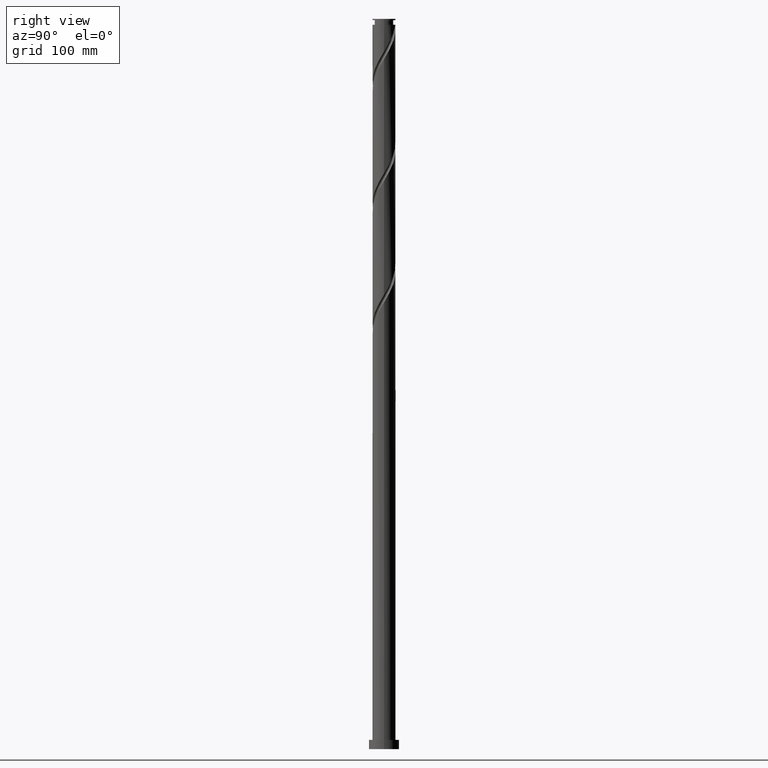
[diagram: clean part render]
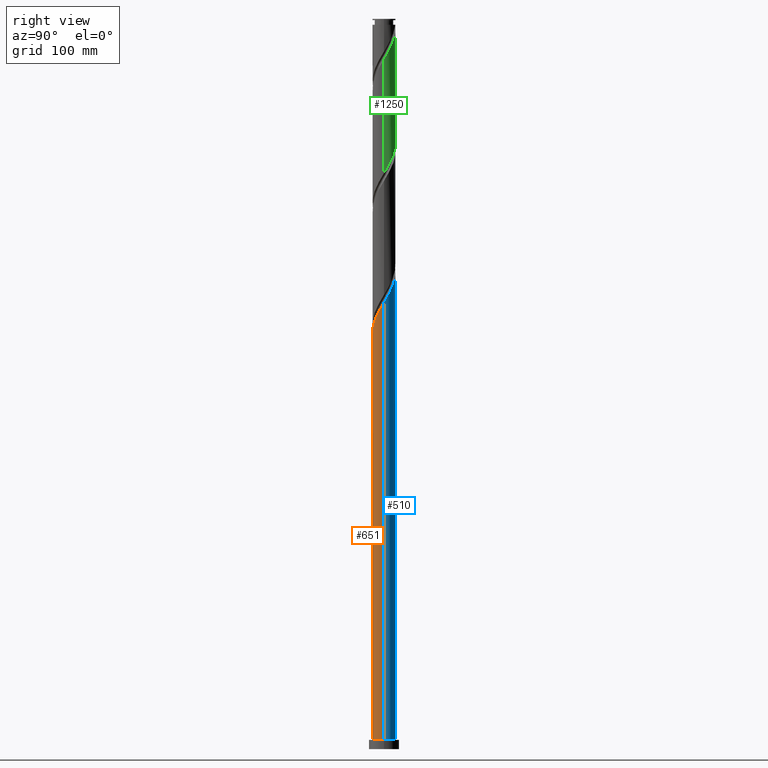
[diagram: same view with three faces highlighted in distinct colors, each labeled with its STEP entity id]
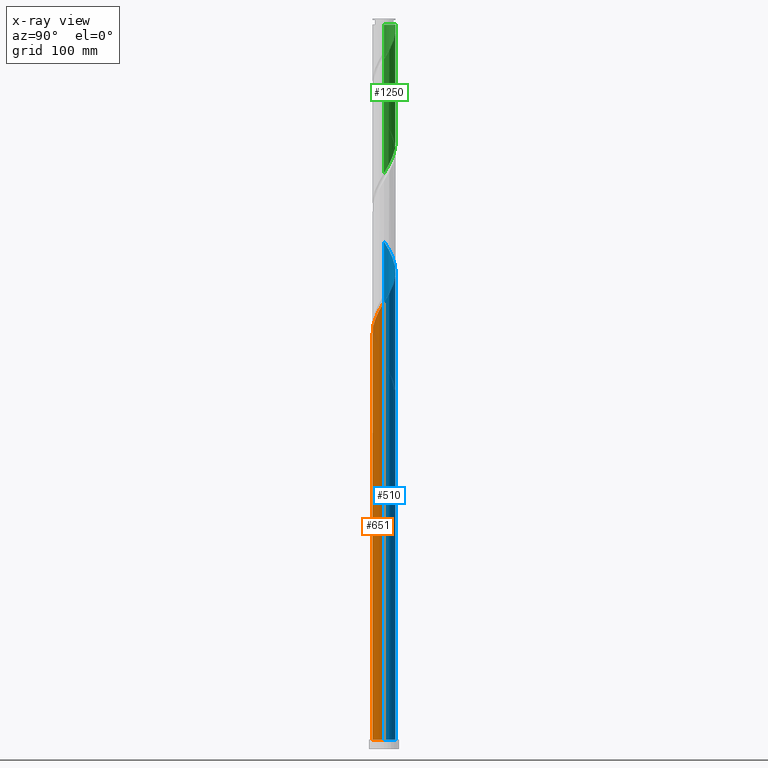
[diagram: x-ray of the same camera — body ghosted, the three highlighted faces saturated]
A machine part, right view with three faces highlighted in distinct colors.
The next image is the same camera in x-ray (body ghosted, the three faces saturated) — at least one of them is partly hidden behind the body in this view.
Their STEP definitions:

[orange] entity #651 — the highlighted cylindrical surface (edge-blend (fillet) strip) has radius 10 mm, axis along (-0, -0, -1).
#22 = ORIENTED_EDGE ( 'NONE', *, *, #1906, .F. ) ;
#50 = CARTESIAN_POINT ( 'NONE',  ( -9.307182251975389065, -3.772931706511726269, 339.2552040029368072 ) ) ;
#64 = EDGE_CURVE ( 'NONE', #976, #1313, #1908, .T. ) ;
#75 = CARTESIAN_POINT ( 'NONE',  ( -5.131608130647619781, -8.582924792486039678, 350.0640275323485753 ) ) ;
#86 = CARTESIAN_POINT ( 'NONE',  ( 0.000000000000000000, 0.000000000000000000, 630.0000000000000000 ) ) ;
#172 = AXIS2_PLACEMENT_3D ( 'NONE', #86, #2081, #402 ) ;
#254 = CARTESIAN_POINT ( 'NONE',  ( -0.7711781494491813937, -10.01318827323741267, 357.7846157676426628 ) ) ;
#293 = CARTESIAN_POINT ( 'NONE',  ( 9.970473777339156740, -0.7678884394185103712, 384.0346157676427765 ) ) ;
#371 = LINE ( 'NONE', #1242, #1459 ) ;
#402 = DIRECTION ( 'NONE',  ( -1.000000000000000000, 0.000000000000000000, 0.000000000000000000 ) ) ;
#429 = AXIS2_PLACEMENT_3D ( 'NONE', #1837, #1152, #2138 ) ;
#432 = CARTESIAN_POINT ( 'NONE',  ( 0.1553464957960880299, -9.998793300506024551, 359.3287334147015031 ) ) ;
#462 = CARTESIAN_POINT ( 'NONE',  ( 8.072826484824918936, -5.901649985038897483, 374.7699098852897350 ) ) ;
#569 = CARTESIAN_POINT ( 'NONE',  ( -8.881308828848125003, -4.595906165994323445, 340.7993216499955338 ) ) ;
#601 = CARTESIAN_POINT ( 'NONE',  ( -6.621341042621000206, -7.493853667993722212, 346.9757922382309516 ) ) ;
#614 = CARTESIAN_POINT ( 'NONE',  ( 9.019796612071711905, -4.317785205039720964, 377.8581451794073587 ) ) ;
#627 = CARTESIAN_POINT ( 'NONE',  ( 9.659608383748059524, -2.586883428495470927, 380.9463804735251529 ) ) ;
#651 = ADVANCED_FACE ( 'NONE', ( #1082 ), #2108, .T. ) ;
#659 = CARTESIAN_POINT ( 'NONE',  ( 6.850945933925582487, -7.284541153046554030, 371.6816745911721114 ) ) ;
#682 = CARTESIAN_POINT ( 'NONE',  ( -10.00000000000001421, -5.826109939293364761E-15, 332.8187599341250689 ) ) ;
#686 = DIRECTION ( 'NONE',  ( -0.000000000000000000, -0.000000000000000000, -1.000000000000000000 ) ) ;
#730 = EDGE_CURVE ( 'NONE', #976, #2171, #1400, .T. ) ;
#739 = CARTESIAN_POINT ( 'NONE',  ( -9.941806644708199414, -1.077256069482183332, 334.6228510617604002 ) ) ;
#747 = CARTESIAN_POINT ( 'NONE',  ( 10.00000000000001599, 6.752312032206668672E-15, 385.3187599341251257 ) ) ;
#819 = EDGE_LOOP ( 'NONE', ( #22, #2030, #1695, #1676 ) ) ;
#976 = VERTEX_POINT ( 'NONE', #682 ) ;
#1022 = CARTESIAN_POINT ( 'NONE',  ( -10.00000000000000178, 0.000000000000000000, 630.0000000000000000 ) ) ;
#1070 = CARTESIAN_POINT ( 'NONE',  ( -2.597965892986468184, -9.700991101550712870, 354.6963804735249255 ) ) ;
#1080 = VECTOR ( 'NONE', #1395, 1000.000000000000000 ) ;
#1082 = FACE_OUTER_BOUND ( 'NONE', #819, .T. ) ;
#1116 = CARTESIAN_POINT ( 'NONE',  ( 1.081871141041357509, -9.984398327774636428, 360.8728510617602296 ) ) ;
#1127 = CARTESIAN_POINT ( 'NONE',  ( 1.989974874213248146, -9.800000000000014921, 362.4169687088192404 ) ) ;
#1147 = CARTESIAN_POINT ( 'NONE',  ( 9.899318434635530295, -1.691788894387298070, 382.4904981205837657 ) ) ;
#1152 = DIRECTION ( 'NONE',  ( 0.000000000000000000, 0.000000000000000000, 1.000000000000000000 ) ) ;
#1160 = CARTESIAN_POINT ( 'NONE',  ( 3.756837045000868791, -9.267479453298477665, 365.5052040029368072 ) ) ;
#1168 = CARTESIAN_POINT ( 'NONE',  ( 10.00000000000001599, 6.752312032206668672E-15, 385.3187599341251257 ) ) ;
#1242 = CARTESIAN_POINT ( 'NONE',  ( 10.00000000000000178, 1.224646799147353454E-15, 630.0000000000000000 ) ) ;
#1252 = CARTESIAN_POINT ( 'NONE',  ( -8.455435405720860942, -5.418880625476918844, 342.3434392970544309 ) ) ;
#1260 = CARTESIAN_POINT ( 'NONE',  ( -7.885592126811187264, -6.149588344724690181, 343.8875569441133280 ) ) ;
#1282 = CARTESIAN_POINT ( 'NONE',  ( -4.336283023954743854, -9.058438312957092009, 351.6081451794071882 ) ) ;
#1313 = VERTEX_POINT ( 'NONE', #1661 ) ;
#1324 = CARTESIAN_POINT ( 'NONE',  ( 5.395764636050384588, -8.419366008931334022, 368.5934392970544877 ) ) ;
#1334 = CARTESIAN_POINT ( 'NONE',  ( 9.419898332860585199, -3.481977962603651555, 379.4022628264661421 ) ) ;
#1395 = DIRECTION ( 'NONE',  ( -0.000000000000000000, -0.000000000000000000, -1.000000000000000000 ) ) ;
#1397 = CIRCLE ( 'NONE', #429, 10.00000000000000178 ) ;
#1400 =( BOUNDED_CURVE ( )  B_SPLINE_CURVE ( 2, ( #1420, #1778, #739, #1602, #2091, #50, #569, #1252, #1260, #1955, #601, #1939, #75, #1282, #1412, #1070, #1437, #254, #432, #1116, #1127, #1491, #1160, #2170, #1324, #2126, #659, #2135, #462, #1823, #614, #1334, #627, #1147, #293, #1645, #1168 ),
 .UNSPECIFIED., .F., .T. ) 
 B_SPLINE_CURVE_WITH_KNOTS ( ( 3, 2, 2, 2, 2, 2, 2, 2, 2, 2, 2, 2, 2, 2, 2, 2, 2, 2, 3 ),
 ( 0.05452935731629056371, 0.05882352941176471894, 0.06617647058823528106, 0.07352941176470584317, 0.08088235294117651630, 0.08823529411764707842, 0.09558823529411764053, 0.1029411764705882026, 0.1102941176470588758, 0.1176470588235294379, 0.1250000000000000000, 0.1323529411764705621, 0.1397058823529411242, 0.1470588235294117974, 0.1544117647058823595, 0.1617647058823529216, 0.1691176470588234837, 0.1764705882352941568, 0.1795293573162906053 ),
 .UNSPECIFIED. ) 
 CURVE ( )  GEOMETRIC_REPRESENTATION_ITEM ( )  RATIONAL_B_SPLINE_CURVE ( ( 0.9072066346053020425, 0.9068261157890691315, 0.9090909090909401469, 0.9052128875409715114, 0.9090909090909401469, 0.9052128875409715114, 0.9090909090909401469, 0.9052128875409715114, 0.9090909090909401469, 0.9052128875409715114, 0.9090909090909401469, 0.9052128875409715114, 0.9090909090909401469, 0.9052128875409715114, 0.9090909090909401469, 0.9052128875409715114, 0.9090909090909401469, 0.9052128875409715114, 0.9090909090909401469, 0.9052128875409715114, 0.9090909090909401469, 0.9052128875409715114, 0.9090909090909401469, 0.9052128875409715114, 0.9090909090909401469, 0.9052128875409715114, 0.9090909090909401469, 0.9052128875409715114, 0.9090909090909401469, 0.9052128875409715114, 0.9090909090909401469, 0.9052128875409715114, 0.9090909090909401469, 0.9052128875409715114, 0.9090909090909401469, 0.9074776808428424157, 0.9072066346053018204 ) ) 
 REPRESENTATION_ITEM ( '' )  );
#1412 = CARTESIAN_POINT ( 'NONE',  ( -3.467124458470604687, -9.379714707253905104, 353.1522628264662558 ) ) ;
#1420 = CARTESIAN_POINT ( 'NONE',  ( -10.00000000000001421, -5.826109939293364761E-15, 332.8187599341250689 ) ) ;
#1437 = CARTESIAN_POINT ( 'NONE',  ( -1.684572021217823012, -9.857089687394065436, 356.2404981205838794 ) ) ;
#1459 = VECTOR ( 'NONE', #686, 1000.000000000000000 ) ;
#1491 = CARTESIAN_POINT ( 'NONE',  ( 2.898078607385141670, -9.615601672225386309, 363.9610863558779101 ) ) ;
#1562 = VERTEX_POINT ( 'NONE', #2052 ) ;
#1602 = CARTESIAN_POINT ( 'NONE',  ( -9.841984169373624525, -1.998500123414084673, 336.1669687088190130 ) ) ;
#1645 = CARTESIAN_POINT ( 'NONE',  ( 10.00000000000002132, -0.3845118788768067675, 384.6753541820654618 ) ) ;
#1661 = CARTESIAN_POINT ( 'NONE',  ( -10.00000000000000178, 0.000000000000000000, 8.000000000000000000 ) ) ;
#1676 = ORIENTED_EDGE ( 'NONE', *, *, #1737, .T. ) ;
#1695 = ORIENTED_EDGE ( 'NONE', *, *, #64, .T. ) ;
#1737 = EDGE_CURVE ( 'NONE', #1313, #1562, #1397, .T. ) ;
#1778 = CARTESIAN_POINT ( 'NONE',  ( -10.00000000000001421, -0.5401998367926561517, 333.7226791661378229 ) ) ;
#1823 = CARTESIAN_POINT ( 'NONE',  ( 8.619694891282842164, -5.153592447475790372, 376.3140275323485184 ) ) ;
#1837 = CARTESIAN_POINT ( 'NONE',  ( 0.000000000000000000, 0.000000000000000000, 8.000000000000000000 ) ) ;
#1906 = EDGE_CURVE ( 'NONE', #2171, #1562, #371, .T. ) ;
#1908 = LINE ( 'NONE', #1022, #1080 ) ;
#1939 = CARTESIAN_POINT ( 'NONE',  ( -5.926933237340491267, -8.107411272014985570, 348.5199098852897350 ) ) ;
#1955 = CARTESIAN_POINT ( 'NONE',  ( -7.315748847901506480, -6.880296063972457077, 345.4316745911719977 ) ) ;
#2030 = ORIENTED_EDGE ( 'NONE', *, *, #730, .F. ) ;
#2052 = CARTESIAN_POINT ( 'NONE',  ( 10.00000000000000178, 1.224646799147353454E-15, 8.000000000000000000 ) ) ;
#2081 = DIRECTION ( 'NONE',  ( -0.000000000000000000, -0.000000000000000000, -1.000000000000000000 ) ) ;
#2091 = CARTESIAN_POINT ( 'NONE',  ( -9.574583210674504130, -2.885715914962903472, 337.7110863558780807 ) ) ;
#2108 = CYLINDRICAL_SURFACE ( 'NONE', #172, 10.00000000000000178 ) ;
#2126 = CARTESIAN_POINT ( 'NONE',  ( 6.175933789484166603, -7.919374783491107017, 370.1375569441132143 ) ) ;
#2135 = CARTESIAN_POINT ( 'NONE',  ( 7.525958078366993931, -6.649707522602001930, 373.2257922382308379 ) ) ;
#2138 = DIRECTION ( 'NONE',  ( 1.000000000000000000, 0.000000000000000000, 0.000000000000000000 ) ) ;
#2170 = CARTESIAN_POINT ( 'NONE',  ( 4.615595482616599909, -8.919357234371563692, 367.0493216499954769 ) ) ;
#2171 = VERTEX_POINT ( 'NONE', #747 ) ;

[blue] entity #510 — the highlighted cylindrical surface (edge-blend (fillet) strip) has radius 10 mm, axis along (-0, -0, -1).
#2 = CARTESIAN_POINT ( 'NONE',  ( 10.00000000000001599, 6.752312032206668672E-15, 385.3187599341251257 ) ) ;
#13 = CARTESIAN_POINT ( 'NONE',  ( -3.756837045000871900, 9.267479453298477665, 418.0052040029368641 ) ) ;
#25 = CARTESIAN_POINT ( 'NONE',  ( 4.336283023954746518, 9.058438312957090233, 404.1081451794073587 ) ) ;
#38 = CARTESIAN_POINT ( 'NONE',  ( 9.574583210674507683, 2.885715914962901696, 390.2110863558780238 ) ) ;
#56 = EDGE_LOOP ( 'NONE', ( #1504, #1726, #1161, #1335, #698, #707, #463, #505 ) ) ;
#60 = CARTESIAN_POINT ( 'NONE',  ( -9.574583210674489919, 2.885715914962902584, 334.6228510617603433 ) ) ;
#64 = EDGE_CURVE ( 'NONE', #976, #1313, #1908, .T. ) ;
#96 =( BOUNDED_CURVE ( )  B_SPLINE_CURVE ( 2, ( #2, #1859, #1899, #204, #38, #1359, #1232, #724, #536, #673, #1728, #1910, #2020, #25, #512, #712, #178, #330, #1195, #547, #1714, #340, #13, #700, #1873, #1062, #1371, #1036, #2047, #524, #1385, #1885, #357, #192, #1554, #2060, #1220 ),
 .UNSPECIFIED., .F., .T. ) 
 B_SPLINE_CURVE_WITH_KNOTS ( ( 3, 2, 2, 2, 2, 2, 2, 2, 2, 2, 2, 2, 2, 2, 2, 2, 2, 2, 3 ),
 ( 0.1795293573162906331, 0.1838235294117647189, 0.1911764705882352811, 0.1985294117647058432, 0.2058823529411765163, 0.2132352941176470784, 0.2205882352941176405, 0.2279411764705882026, 0.2352941176470588758, 0.2426470588235294379, 0.2500000000000000000, 0.2573529411764705621, 0.2647058823529411242, 0.2720588235294117974, 0.2794117647058823595, 0.2867647058823529216, 0.2941176470588234837, 0.3014705882352941568, 0.3045293573162903278 ),
 .UNSPECIFIED. ) 
 CURVE ( )  GEOMETRIC_REPRESENTATION_ITEM ( )  RATIONAL_B_SPLINE_CURVE ( ( 0.9072066346053018204, 0.9068261157890690205, 0.9090909090909401469, 0.9052128875409715114, 0.9090909090909401469, 0.9052128875409715114, 0.9090909090909401469, 0.9052128875409715114, 0.9090909090909401469, 0.9052128875409715114, 0.9090909090909401469, 0.9052128875409715114, 0.9090909090909401469, 0.9052128875409715114, 0.9090909090909401469, 0.9052128875409715114, 0.9090909090909401469, 0.9052128875409715114, 0.9090909090909401469, 0.9052128875409715114, 0.9090909090909401469, 0.9052128875409715114, 0.9090909090909401469, 0.9052128875409715114, 0.9090909090909401469, 0.9052128875409715114, 0.9090909090909401469, 0.9052128875409715114, 0.9090909090909401469, 0.9052128875409715114, 0.9090909090909401469, 0.9052128875409715114, 0.9090909090909401469, 0.9052128875409715114, 0.9090909090909401469, 0.9074776808428426378, 0.9072066346053018204 ) ) 
 REPRESENTATION_ITEM ( '' )  );
#102 = CARTESIAN_POINT ( 'NONE',  ( -1.989974874213246814, 9.800000000000014921, 309.9169687088191836 ) ) ;
#178 = CARTESIAN_POINT ( 'NONE',  ( 1.684572021217823679, 9.857089687394065436, 408.7404981205839363 ) ) ;
#192 = CARTESIAN_POINT ( 'NONE',  ( -9.899318434635530295, 1.691788894387298736, 434.9904981205838226 ) ) ;
#204 = CARTESIAN_POINT ( 'NONE',  ( 9.841984169373624525, 1.998500123414083118, 388.6669687088191267 ) ) ;
#224 = CARTESIAN_POINT ( 'NONE',  ( -10.00000000000000178, -2.094411829458808635E-14, 339.5151774835132983 ) ) ;
#233 = CARTESIAN_POINT ( 'NONE',  ( -8.455435405720850284, 5.418880625476918844, 329.9904981205837657 ) ) ;
#266 = CARTESIAN_POINT ( 'NONE',  ( -1.684572021217819016, 9.857089687394051225, 316.0934392970544309 ) ) ;
#279 = VECTOR ( 'NONE', #2088, 1000.000000000000000 ) ;
#280 = CARTESIAN_POINT ( 'NONE',  ( -10.00000000000001599, 0.3845118788768149276, 332.1753541820653481 ) ) ;
#330 = CARTESIAN_POINT ( 'NONE',  ( 0.7711781494491821709, 10.01318827323741090, 410.2846157676426060 ) ) ;
#335 = CARTESIAN_POINT ( 'NONE',  ( -3.756837045000871900, 9.267479453298477665, 313.0052040029368072 ) ) ;
#340 = CARTESIAN_POINT ( 'NONE',  ( -2.898078607385141225, 9.615601672225386309, 416.4610863558778533 ) ) ;
#357 = CARTESIAN_POINT ( 'NONE',  ( -9.659608383748059524, 2.586883428495473591, 433.4463804735249823 ) ) ;
#364 = CARTESIAN_POINT ( 'NONE',  ( -8.072826484824918936, 5.901649985038897483, 322.2699098852897350 ) ) ;
#370 = FACE_OUTER_BOUND ( 'NONE', #56, .T. ) ;
#371 = LINE ( 'NONE', #1242, #1459 ) ;
#392 = CARTESIAN_POINT ( 'NONE',  ( -6.621341042620988659, 7.493853667993711554, 325.3581451794074155 ) ) ;
#420 = AXIS2_PLACEMENT_3D ( 'NONE', #1915, #1776, #1766 ) ;
#434 = CARTESIAN_POINT ( 'NONE',  ( -9.419898332860585199, 3.481977962603648447, 326.9022628264661989 ) ) ;
#463 = ORIENTED_EDGE ( 'NONE', *, *, #664, .F. ) ;
#479 = EDGE_CURVE ( 'NONE', #2171, #2069, #96, .T. ) ;
#505 = ORIENTED_EDGE ( 'NONE', *, *, #1045, .F. ) ;
#510 = ADVANCED_FACE ( 'NONE', ( #370 ), #1050, .T. ) ;
#512 = CARTESIAN_POINT ( 'NONE',  ( 3.467124458470610904, 9.379714707253905104, 405.6522628264661421 ) ) ;
#524 = CARTESIAN_POINT ( 'NONE',  ( -8.619694891282842164, 5.153592447475790372, 428.8140275323485184 ) ) ;
#536 = CARTESIAN_POINT ( 'NONE',  ( 7.885592126811185487, 6.149588344724691957, 396.3875569441132143 ) ) ;
#547 = CARTESIAN_POINT ( 'NONE',  ( -1.081871141041356399, 9.984398327774638204, 413.3728510617603433 ) ) ;
#558 = CARTESIAN_POINT ( 'NONE',  ( 1.081871141041356177, 9.984398327774622217, 311.4610863558780807 ) ) ;
#572 = CARTESIAN_POINT ( 'NONE',  ( -9.970473777339156740, 0.7678884394185070406, 331.5346157676427197 ) ) ;
#637 = CARTESIAN_POINT ( 'NONE',  ( 0.000000000000000000, 0.000000000000000000, 309.9169687088191836 ) ) ;
#664 = EDGE_CURVE ( 'NONE', #1393, #1710, #1616, .T. ) ;
#673 = CARTESIAN_POINT ( 'NONE',  ( 7.315748847901506480, 6.880296063972454412, 397.9316745911720545 ) ) ;
#676 = AXIS2_PLACEMENT_3D ( 'NONE', #637, #1311, #862 ) ;
#682 = CARTESIAN_POINT ( 'NONE',  ( -10.00000000000001421, -5.826109939293364761E-15, 332.8187599341250689 ) ) ;
#686 = DIRECTION ( 'NONE',  ( -0.000000000000000000, -0.000000000000000000, -1.000000000000000000 ) ) ;
#692 = CARTESIAN_POINT ( 'NONE',  ( -7.525958078366996595, 6.649707522602001930, 320.7257922382308948 ) ) ;
#698 = ORIENTED_EDGE ( 'NONE', *, *, #1581, .F. ) ;
#700 = CARTESIAN_POINT ( 'NONE',  ( -4.615595482616599909, 8.919357234371563692, 419.5493216499955906 ) ) ;
#707 = ORIENTED_EDGE ( 'NONE', *, *, #857, .T. ) ;
#712 = CARTESIAN_POINT ( 'NONE',  ( 2.597965892986464631, 9.700991101550712870, 407.1963804735249823 ) ) ;
#717 = CARTESIAN_POINT ( 'NONE',  ( -9.659608383748059524, 2.586883428495473591, 328.4463804735250392 ) ) ;
#724 = CARTESIAN_POINT ( 'NONE',  ( 8.455435405720862718, 5.418880625476918844, 394.8434392970543172 ) ) ;
#747 = CARTESIAN_POINT ( 'NONE',  ( 10.00000000000001599, 6.752312032206668672E-15, 385.3187599341251257 ) ) ;
#761 = CARTESIAN_POINT ( 'NONE',  ( -10.00000000000000178, 0.000000000000000000, 630.0000000000000000 ) ) ;
#773 = CARTESIAN_POINT ( 'NONE',  ( -7.885592126811174829, 6.149588344724682187, 328.4463804735250960 ) ) ;
#788 = CARTESIAN_POINT ( 'NONE',  ( -10.00000000000001421, -5.826109939293364761E-15, 332.8187599341250689 ) ) ;
#857 = EDGE_CURVE ( 'NONE', #1646, #1710, #1697, .T. ) ;
#862 = DIRECTION ( 'NONE',  ( -1.000000000000000000, 0.000000000000000000, 0.000000000000000000 ) ) ;
#891 = CARTESIAN_POINT ( 'NONE',  ( 0.000000000000000000, 0.000000000000000000, 630.0000000000000000 ) ) ;
#911 = CARTESIAN_POINT ( 'NONE',  ( -9.841984169373612090, 1.998500123414084007, 336.1669687088192404 ) ) ;
#919 = CARTESIAN_POINT ( 'NONE',  ( -4.336283023954739413, 9.058438312957086680, 320.7257922382310085 ) ) ;
#929 = CARTESIAN_POINT ( 'NONE',  ( -7.315748847901494045, 6.880296063972447307, 326.9022628264663695 ) ) ;
#947 = CARTESIAN_POINT ( 'NONE',  ( -5.926933237340482385, 8.107411272014974912, 323.8140275323486321 ) ) ;
#976 = VERTEX_POINT ( 'NONE', #682 ) ;
#997 = CARTESIAN_POINT ( 'NONE',  ( -10.00000000000000178, -2.094411829458808635E-14, 339.5151774835132983 ) ) ;
#1018 = CARTESIAN_POINT ( 'NONE',  ( -5.395764636050383700, 8.419366008931335799, 316.0934392970546014 ) ) ;
#1022 = CARTESIAN_POINT ( 'NONE',  ( -10.00000000000000178, 0.000000000000000000, 630.0000000000000000 ) ) ;
#1026 = AXIS2_PLACEMENT_3D ( 'NONE', #891, #1566, #1399 ) ;
#1036 = CARTESIAN_POINT ( 'NONE',  ( -7.525958078366996595, 6.649707522602001930, 425.7257922382307811 ) ) ;
#1045 = EDGE_CURVE ( 'NONE', #2069, #1393, #1882, .T. ) ;
#1050 = CYLINDRICAL_SURFACE ( 'NONE', #1026, 10.00000000000000178 ) ;
#1062 = CARTESIAN_POINT ( 'NONE',  ( -6.175933789484167491, 7.919374783491107017, 422.6375569441132143 ) ) ;
#1080 = VECTOR ( 'NONE', #1395, 1000.000000000000000 ) ;
#1102 = CARTESIAN_POINT ( 'NONE',  ( -2.597965892986461078, 9.700991101550700435, 317.6375569441132143 ) ) ;
#1120 = CARTESIAN_POINT ( 'NONE',  ( -9.019796612071713682, 4.317785205039719187, 325.3581451794074724 ) ) ;
#1130 = CARTESIAN_POINT ( 'NONE',  ( 1.989974874213250144, 9.799999999999998934, 309.9169687088191836 ) ) ;
#1136 = CIRCLE ( 'NONE', #420, 10.00000000000000178 ) ;
#1144 = EDGE_CURVE ( 'NONE', #1562, #1313, #1136, .T. ) ;
#1161 = ORIENTED_EDGE ( 'NONE', *, *, #1144, .T. ) ;
#1195 = CARTESIAN_POINT ( 'NONE',  ( -0.1553464957960909998, 9.998793300506024551, 411.8287334147015599 ) ) ;
#1213 = CARTESIAN_POINT ( 'NONE',  ( -4.615595482616599909, 8.919357234371563692, 314.5493216499957043 ) ) ;
#1220 = CARTESIAN_POINT ( 'NONE',  ( -10.00000000000001599, 2.201970782184210638E-14, 437.8187599341251257 ) ) ;
#1232 = CARTESIAN_POINT ( 'NONE',  ( 8.881308828848125003, 4.595906165994322556, 393.2993216499956475 ) ) ;
#1242 = CARTESIAN_POINT ( 'NONE',  ( 10.00000000000000178, 1.224646799147353454E-15, 630.0000000000000000 ) ) ;
#1268 = CARTESIAN_POINT ( 'NONE',  ( -0.7711781494491763977, 10.01318827323739669, 314.5493216499955906 ) ) ;
#1285 = CARTESIAN_POINT ( 'NONE',  ( -9.899318434635530295, 1.691788894387298736, 329.9904981205837089 ) ) ;
#1311 = DIRECTION ( 'NONE',  ( 0.000000000000000000, -0.000000000000000000, -1.000000000000000000 ) ) ;
#1313 = VERTEX_POINT ( 'NONE', #1661 ) ;
#1335 = ORIENTED_EDGE ( 'NONE', *, *, #64, .F. ) ;
#1352 = CARTESIAN_POINT ( 'NONE',  ( -1.989974874213246814, 9.800000000000014921, 309.9169687088191836 ) ) ;
#1359 = CARTESIAN_POINT ( 'NONE',  ( 9.307182251975387288, 3.772931706511726713, 391.7552040029368072 ) ) ;
#1365 = CARTESIAN_POINT ( 'NONE',  ( -6.850945933925579823, 7.284541153046557582, 319.1816745911720545 ) ) ;
#1371 = CARTESIAN_POINT ( 'NONE',  ( -6.850945933925579823, 7.284541153046557582, 424.1816745911721114 ) ) ;
#1385 = CARTESIAN_POINT ( 'NONE',  ( -9.019796612071713682, 4.317785205039719187, 430.3581451794074155 ) ) ;
#1393 = VERTEX_POINT ( 'NONE', #997 ) ;
#1395 = DIRECTION ( 'NONE',  ( -0.000000000000000000, -0.000000000000000000, -1.000000000000000000 ) ) ;
#1399 = DIRECTION ( 'NONE',  ( -1.000000000000000000, 0.000000000000000000, 0.000000000000000000 ) ) ;
#1446 = CARTESIAN_POINT ( 'NONE',  ( 0.1553464957960895010, 9.998793300506012116, 313.0052040029368072 ) ) ;
#1459 = VECTOR ( 'NONE', #686, 1000.000000000000000 ) ;
#1504 = ORIENTED_EDGE ( 'NONE', *, *, #479, .F. ) ;
#1554 = CARTESIAN_POINT ( 'NONE',  ( -9.970473777339156740, 0.7678884394185070406, 436.5346157676427197 ) ) ;
#1562 = VERTEX_POINT ( 'NONE', #2052 ) ;
#1566 = DIRECTION ( 'NONE',  ( -0.000000000000000000, -0.000000000000000000, -1.000000000000000000 ) ) ;
#1581 = EDGE_CURVE ( 'NONE', #1646, #976, #2134, .T. ) ;
#1587 = CARTESIAN_POINT ( 'NONE',  ( -8.881308828848109016, 4.595906165994316339, 331.5346157676427197 ) ) ;
#1595 = CARTESIAN_POINT ( 'NONE',  ( 1.989974874213250144, 9.799999999999998934, 309.9169687088191836 ) ) ;
#1610 = CARTESIAN_POINT ( 'NONE',  ( -10.00000000000000355, 0.5401998367926204025, 338.6112582515004874 ) ) ;
#1613 = CARTESIAN_POINT ( 'NONE',  ( -8.619694891282842164, 5.153592447475790372, 323.8140275323485184 ) ) ;
#1616 =( BOUNDED_CURVE ( )  B_SPLINE_CURVE ( 2, ( #224, #1610, #1918, #911, #60, #1761, #1587, #233, #773, #929, #392, #947, #1929, #919, #2100, #1102, #266, #1268, #1446, #558, #1595 ),
 .UNSPECIFIED., .F., .T. ) 
 B_SPLINE_CURVE_WITH_KNOTS ( ( 3, 2, 2, 2, 2, 2, 2, 2, 2, 2, 3 ),
 ( 0.9295293573162902723, 0.9338235294117647189, 0.9411764705882352811, 0.9485294117647058432, 0.9558823529411765163, 0.9632352941176470784, 0.9705882352941176405, 0.9779411764705882026, 0.9852941176470588758, 0.9926470588235294379, 1.000000000000000000 ),
 .UNSPECIFIED. ) 
 CURVE ( )  GEOMETRIC_REPRESENTATION_ITEM ( )  RATIONAL_B_SPLINE_CURVE ( ( 0.9072066346052956032, 0.9068261157890626922, 0.9090909090909340406, 0.9052128875409651831, 0.9090909090909340406, 0.9052128875409651831, 0.9090909090909340406, 0.9052128875409651831, 0.9090909090909340406, 0.9052128875409651831, 0.9090909090909340406, 0.9052128875409651831, 0.9090909090909340406, 0.9052128875409651831, 0.9090909090909340406, 0.9052128875409651831, 0.9090909090909340406, 0.9052128875409651831, 0.9090909090909340406, 0.9052128875409651831, 0.9090909090909340406 ) ) 
 REPRESENTATION_ITEM ( '' )  );
#1646 = VERTEX_POINT ( 'NONE', #102 ) ;
#1661 = CARTESIAN_POINT ( 'NONE',  ( -10.00000000000000178, 0.000000000000000000, 8.000000000000000000 ) ) ;
#1697 = CIRCLE ( 'NONE', #676, 10.00000000000000178 ) ;
#1710 = VERTEX_POINT ( 'NONE', #1130 ) ;
#1714 = CARTESIAN_POINT ( 'NONE',  ( -1.989974874213246370, 9.800000000000014921, 414.9169687088191267 ) ) ;
#1726 = ORIENTED_EDGE ( 'NONE', *, *, #1906, .T. ) ;
#1728 = CARTESIAN_POINT ( 'NONE',  ( 6.621341042621002870, 7.493853667993720435, 399.4757922382309516 ) ) ;
#1761 = CARTESIAN_POINT ( 'NONE',  ( -9.307182251975373077, 3.772931706511721828, 333.0787334147013894 ) ) ;
#1766 = DIRECTION ( 'NONE',  ( 1.000000000000000000, 0.000000000000000000, 0.000000000000000000 ) ) ;
#1776 = DIRECTION ( 'NONE',  ( 0.000000000000000000, 0.000000000000000000, 1.000000000000000000 ) ) ;
#1859 = CARTESIAN_POINT ( 'NONE',  ( 10.00000000000001599, 0.5401998367926676980, 386.2226791661378797 ) ) ;
#1864 = CARTESIAN_POINT ( 'NONE',  ( -2.898078607385141225, 9.615601672225386309, 311.4610863558779101 ) ) ;
#1873 = CARTESIAN_POINT ( 'NONE',  ( -5.395764636050383700, 8.419366008931335799, 421.0934392970544877 ) ) ;
#1882 = LINE ( 'NONE', #761, #279 ) ;
#1885 = CARTESIAN_POINT ( 'NONE',  ( -9.419898332860585199, 3.481977962603648447, 431.9022628264661421 ) ) ;
#1891 = CARTESIAN_POINT ( 'NONE',  ( -6.175933789484167491, 7.919374783491107017, 317.6375569441132711 ) ) ;
#1899 = CARTESIAN_POINT ( 'NONE',  ( 9.941806644708201190, 1.077256069482184664, 387.1228510617602296 ) ) ;
#1906 = EDGE_CURVE ( 'NONE', #2171, #1562, #371, .T. ) ;
#1908 = LINE ( 'NONE', #1022, #1080 ) ;
#1910 = CARTESIAN_POINT ( 'NONE',  ( 5.926933237340488603, 8.107411272014987347, 401.0199098852896213 ) ) ;
#1915 = CARTESIAN_POINT ( 'NONE',  ( 0.000000000000000000, 0.000000000000000000, 8.000000000000000000 ) ) ;
#1918 = CARTESIAN_POINT ( 'NONE',  ( -9.941806644708188756, 1.077256069482184886, 337.7110863558780807 ) ) ;
#1929 = CARTESIAN_POINT ( 'NONE',  ( -5.131608130647609123, 8.582924792486027243, 322.2699098852897350 ) ) ;
#1947 = CARTESIAN_POINT ( 'NONE',  ( -10.00000000000001599, 2.201970782184210323E-14, 437.8187599341251257 ) ) ;
#2020 = CARTESIAN_POINT ( 'NONE',  ( 5.131608130647618005, 8.582924792486041454, 402.5640275323485753 ) ) ;
#2047 = CARTESIAN_POINT ( 'NONE',  ( -8.072826484824918936, 5.901649985038897483, 427.2699098852897919 ) ) ;
#2052 = CARTESIAN_POINT ( 'NONE',  ( 10.00000000000000178, 1.224646799147353454E-15, 8.000000000000000000 ) ) ;
#2060 = CARTESIAN_POINT ( 'NONE',  ( -10.00000000000001421, 0.3845118788768445706, 437.1753541820654618 ) ) ;
#2069 = VERTEX_POINT ( 'NONE', #1947 ) ;
#2088 = DIRECTION ( 'NONE',  ( -0.000000000000000000, -0.000000000000000000, -1.000000000000000000 ) ) ;
#2100 = CARTESIAN_POINT ( 'NONE',  ( -3.467124458470598913, 9.379714707253892669, 319.1816745911721114 ) ) ;
#2134 =( BOUNDED_CURVE ( )  B_SPLINE_CURVE ( 2, ( #1352, #1864, #335, #1213, #1018, #1891, #1365, #692, #364, #1613, #1120, #434, #717, #1285, #572, #280, #788 ),
 .UNSPECIFIED., .F., .T. ) 
 B_SPLINE_CURVE_WITH_KNOTS ( ( 3, 2, 2, 2, 2, 2, 2, 2, 3 ),
 ( 0.000000000000000000, 0.007352941176470561245, 0.01470588235294112249, 0.02205882352941179736, 0.02941176470588235947, 0.03676470588235292158, 0.04411764705882348370, 0.05147058823529415683, 0.05452935731629056371 ),
 .UNSPECIFIED. ) 
 CURVE ( )  GEOMETRIC_REPRESENTATION_ITEM ( )  RATIONAL_B_SPLINE_CURVE ( ( 0.9090909090909401469, 0.9052128875409715114, 0.9090909090909401469, 0.9052128875409715114, 0.9090909090909401469, 0.9052128875409715114, 0.9090909090909401469, 0.9052128875409715114, 0.9090909090909401469, 0.9052128875409715114, 0.9090909090909401469, 0.9052128875409715114, 0.9090909090909401469, 0.9052128875409715114, 0.9090909090909401469, 0.9074776808428426378, 0.9072066346053020425 ) ) 
 REPRESENTATION_ITEM ( '' )  );
#2171 = VERTEX_POINT ( 'NONE', #747 ) ;

[green] entity #1250 — the highlighted cylindrical surface (edge-blend (fillet) strip) has radius 10 mm, axis along (-0, -0, -1).
#10 = CARTESIAN_POINT ( 'NONE',  ( 9.659608383748043536, 2.586883428495471371, 501.3875569441132711 ) ) ;
#23 = CARTESIAN_POINT ( 'NONE',  ( -5.131608130647609123, 8.582924792486027243, 532.2699098852897350 ) ) ;
#28 =( BOUNDED_CURVE ( )  B_SPLINE_CURVE ( 2, ( #887, #721, #494, #1674, #669, #1685, #189, #2016, #1180, #1021, #1894, #876, #23, #2190, #1217, #1229, #1539, #1725, #368, #2044, #1046, #1381, #161, #201, #2056, #1563, #1204, #1394, #35, #2070, #1907, #1368, #10, #151, #2032, #1855, #849 ),
 .UNSPECIFIED., .F., .T. ) 
 B_SPLINE_CURVE_WITH_KNOTS ( ( 3, 2, 2, 2, 2, 2, 2, 2, 2, 2, 2, 2, 2, 2, 2, 2, 2, 2, 3 ),
 ( 0.4295293573162906609, 0.4338235294117647189, 0.4411764705882352811, 0.4485294117647058987, 0.4558823529411764608, 0.4632352941176470784, 0.4705882352941176405, 0.4779411764705882582, 0.4852941176470588203, 0.4926470588235294379, 0.5000000000000000000, 0.5073529411764705621, 0.5147058823529411242, 0.5220588235294117974, 0.5294117647058823595, 0.5367647058823529216, 0.5441176470588234837, 0.5514705882352941568, 0.5545293573162904943 ),
 .UNSPECIFIED. ) 
 CURVE ( )  GEOMETRIC_REPRESENTATION_ITEM ( )  RATIONAL_B_SPLINE_CURVE ( ( 0.9072066346052958252, 0.9068261157890629143, 0.9090909090909340406, 0.9052128875409651831, 0.9090909090909340406, 0.9052128875409651831, 0.9090909090909340406, 0.9052128875409651831, 0.9090909090909340406, 0.9052128875409651831, 0.9090909090909340406, 0.9052128875409651831, 0.9090909090909340406, 0.9052128875409651831, 0.9090909090909340406, 0.9052128875409651831, 0.9090909090909340406, 0.9052128875409651831, 0.9090909090909340406, 0.9052128875409651831, 0.9090909090909340406, 0.9052128875409651831, 0.9090909090909340406, 0.9052128875409651831, 0.9090909090909340406, 0.9052128875409651831, 0.9090909090909340406, 0.9052128875409651831, 0.9090909090909340406, 0.9052128875409651831, 0.9090909090909340406, 0.9052128875409651831, 0.9090909090909340406, 0.9052128875409651831, 0.9090909090909340406, 0.9074776808428364205, 0.9072066346052956032 ) ) 
 REPRESENTATION_ITEM ( '' )  );
#30 = CARTESIAN_POINT ( 'NONE',  ( 0.7711781494491821709, 10.01318827323741090, 620.2846157676423218 ) ) ;
#35 = CARTESIAN_POINT ( 'NONE',  ( 8.072826484824908277, 5.901649985038888602, 507.5640275323486321 ) ) ;
#36 = VERTEX_POINT ( 'NONE', #888 ) ;
#68 = CARTESIAN_POINT ( 'NONE',  ( -10.00000000000000178, 0.000000000000000000, 630.0000000000000000 ) ) ;
#83 = AXIS2_PLACEMENT_3D ( 'NONE', #534, #877, #1357 ) ;
#149 = CARTESIAN_POINT ( 'NONE',  ( 8.455435405720862718, 5.418880625476918844, 604.8434392970542604 ) ) ;
#151 = CARTESIAN_POINT ( 'NONE',  ( 9.899318434635521413, 1.691788894387290743, 499.8434392970544309 ) ) ;
#161 = CARTESIAN_POINT ( 'NONE',  ( 3.756837045000864794, 9.267479453298463454, 516.8287334147015599 ) ) ;
#171 = CARTESIAN_POINT ( 'NONE',  ( 10.00000000000002309, 0.5401998367925805455, 596.2226791661375955 ) ) ;
#183 = CARTESIAN_POINT ( 'NONE',  ( 10.00000000000001954, 9.262020929133045026E-16, 595.3187599341250689 ) ) ;
#189 = CARTESIAN_POINT ( 'NONE',  ( -8.881308828848109016, 4.595906165994316339, 541.5346157676427765 ) ) ;
#201 = CARTESIAN_POINT ( 'NONE',  ( 4.615595482616599021, 8.919357234371545928, 515.2846157676427765 ) ) ;
#213 = CARTESIAN_POINT ( 'NONE',  ( -1.989974874213321865, 9.800000000000000711, 624.9169687088193541 ) ) ;
#227 = EDGE_CURVE ( 'NONE', #1866, #398, #1995, .T. ) ;
#251 =( BOUNDED_CURVE ( )  B_SPLINE_CURVE ( 2, ( #859, #171, #1841, #1707, #1683, #1879, #883, #149, #870, #481, #1175, #1560, #1341, #1546, #1167, #1535, #834, #30, #2013, #1510, #2177 ),
 .UNSPECIFIED., .F., .T. ) 
 B_SPLINE_CURVE_WITH_KNOTS ( ( 3, 2, 2, 2, 2, 2, 2, 2, 2, 2, 3 ),
 ( 0.6795293573162899392, 0.6838235294117647189, 0.6911764705882351700, 0.6985294117647057321, 0.7058823529411761832, 0.7132352941176468564, 0.7205882352941174185, 0.7279411764705879806, 0.7352941176470585427, 0.7426470588235289938, 0.7499999999999995559 ),
 .UNSPECIFIED. ) 
 CURVE ( )  GEOMETRIC_REPRESENTATION_ITEM ( )  RATIONAL_B_SPLINE_CURVE ( ( 0.9072066346053018204, 0.9068261157890686874, 0.9090909090909401469, 0.9052128875409715114, 0.9090909090909401469, 0.9052128875409715114, 0.9090909090909401469, 0.9052128875409715114, 0.9090909090909401469, 0.9052128875409715114, 0.9090909090909401469, 0.9052128875409715114, 0.9090909090909401469, 0.9052128875409715114, 0.9090909090909401469, 0.9052128875409715114, 0.9090909090909401469, 0.9052128875409715114, 0.9090909090909401469, 0.9052128875409718445, 0.9090909090909398138 ) ) 
 REPRESENTATION_ITEM ( '' )  );
#312 = VECTOR ( 'NONE', #578, 1000.000000000000000 ) ;
#368 = CARTESIAN_POINT ( 'NONE',  ( 0.1553464957960895010, 9.998793300506012116, 523.0052040029368072 ) ) ;
#398 = VERTEX_POINT ( 'NONE', #213 ) ;
#481 = CARTESIAN_POINT ( 'NONE',  ( 7.315748847901506480, 6.880296063972454412, 607.9316745911719408 ) ) ;
#494 = CARTESIAN_POINT ( 'NONE',  ( -9.941806644708188756, 1.077256069482184886, 547.7110863558779101 ) ) ;
#534 = CARTESIAN_POINT ( 'NONE',  ( 0.000000000000000000, 0.000000000000000000, 624.9169687088192404 ) ) ;
#578 = DIRECTION ( 'NONE',  ( -0.000000000000000000, -0.000000000000000000, -1.000000000000000000 ) ) ;
#629 = VERTEX_POINT ( 'NONE', #1241 ) ;
#656 = CYLINDRICAL_SURFACE ( 'NONE', #1569, 10.00000000000000178 ) ;
#669 = CARTESIAN_POINT ( 'NONE',  ( -9.574583210674489919, 2.885715914962902584, 544.6228510617604570 ) ) ;
#696 = EDGE_CURVE ( 'NONE', #1866, #629, #2117, .T. ) ;
#697 = DIRECTION ( 'NONE',  ( -0.000000000000000000, -0.000000000000000000, -1.000000000000000000 ) ) ;
#721 = CARTESIAN_POINT ( 'NONE',  ( -9.999999999999998224, 0.5401998367926732492, 548.6112582515003169 ) ) ;
#834 = CARTESIAN_POINT ( 'NONE',  ( 1.684572021217823679, 9.857089687394065436, 618.7404981205838794 ) ) ;
#847 = ORIENTED_EDGE ( 'NONE', *, *, #1015, .T. ) ;
#849 = CARTESIAN_POINT ( 'NONE',  ( 10.00000000000000178, -7.319984282701970376E-15, 497.0151774835132414 ) ) ;
#859 = CARTESIAN_POINT ( 'NONE',  ( 10.00000000000001954, 9.262020929133045026E-16, 595.3187599341251826 ) ) ;
#870 = CARTESIAN_POINT ( 'NONE',  ( 7.885592126811185487, 6.149588344724691957, 606.3875569441132711 ) ) ;
#876 = CARTESIAN_POINT ( 'NONE',  ( -5.926933237340482385, 8.107411272014974912, 533.8140275323486321 ) ) ;
#877 = DIRECTION ( 'NONE',  ( -0.000000000000000000, -0.000000000000000000, -1.000000000000000000 ) ) ;
#883 = CARTESIAN_POINT ( 'NONE',  ( 8.881308828848125003, 4.595906165994322556, 603.2993216499955906 ) ) ;
#887 = CARTESIAN_POINT ( 'NONE',  ( -10.00000000000000000, 1.105467014122338344E-15, 549.5151774835130709 ) ) ;
#888 = CARTESIAN_POINT ( 'NONE',  ( 10.00000000000000178, -7.319984282701970376E-15, 497.0151774835131846 ) ) ;
#906 = ORIENTED_EDGE ( 'NONE', *, *, #696, .F. ) ;
#935 = FACE_OUTER_BOUND ( 'NONE', #1032, .T. ) ;
#966 = ORIENTED_EDGE ( 'NONE', *, *, #970, .F. ) ;
#970 = EDGE_CURVE ( 'NONE', #629, #36, #28, .T. ) ;
#1015 = EDGE_CURVE ( 'NONE', #1416, #36, #1528, .T. ) ;
#1021 = CARTESIAN_POINT ( 'NONE',  ( -7.315748847901494045, 6.880296063972447307, 536.9022628264661989 ) ) ;
#1032 = EDGE_LOOP ( 'NONE', ( #1844, #847, #966, #906, #1181 ) ) ;
#1046 = CARTESIAN_POINT ( 'NONE',  ( 1.989974874213249922, 9.799999999999998934, 519.9169687088192404 ) ) ;
#1112 = CARTESIAN_POINT ( 'NONE',  ( 0.000000000000000000, 0.000000000000000000, 630.0000000000000000 ) ) ;
#1167 = CARTESIAN_POINT ( 'NONE',  ( 3.467124458470610904, 9.379714707253905104, 615.6522628264660852 ) ) ;
#1175 = CARTESIAN_POINT ( 'NONE',  ( 6.621341042621002870, 7.493853667993720435, 609.4757922382308379 ) ) ;
#1180 = CARTESIAN_POINT ( 'NONE',  ( -7.885592126811174829, 6.149588344724682187, 538.4463804735249823 ) ) ;
#1181 = ORIENTED_EDGE ( 'NONE', *, *, #227, .T. ) ;
#1204 = CARTESIAN_POINT ( 'NONE',  ( 6.850945933925575382, 7.284541153046539819, 510.6522628264662558 ) ) ;
#1217 = CARTESIAN_POINT ( 'NONE',  ( -3.467124458470598913, 9.379714707253892669, 529.1816745911720545 ) ) ;
#1229 = CARTESIAN_POINT ( 'NONE',  ( -2.597965892986461078, 9.700991101550700435, 527.6375569441132711 ) ) ;
#1241 = CARTESIAN_POINT ( 'NONE',  ( -10.00000000000000000, 1.105467014122338344E-15, 549.5151774835130709 ) ) ;
#1245 = VECTOR ( 'NONE', #697, 1000.000000000000000 ) ;
#1250 = ADVANCED_FACE ( 'NONE', ( #935 ), #656, .T. ) ;
#1341 = CARTESIAN_POINT ( 'NONE',  ( 5.131608130647618005, 8.582924792486041454, 612.5640275323487458 ) ) ;
#1356 = CARTESIAN_POINT ( 'NONE',  ( 10.00000000000000178, 1.224646799147353454E-15, 630.0000000000000000 ) ) ;
#1357 = DIRECTION ( 'NONE',  ( -1.000000000000000000, 0.000000000000000000, 0.000000000000000000 ) ) ;
#1368 = CARTESIAN_POINT ( 'NONE',  ( 9.419898332860572765, 3.481977962603642229, 502.9316745911721682 ) ) ;
#1381 = CARTESIAN_POINT ( 'NONE',  ( 2.898078607385139893, 9.615601672225375651, 518.3728510617603433 ) ) ;
#1394 = CARTESIAN_POINT ( 'NONE',  ( 7.525958078366985937, 6.649707522601990384, 509.1081451794073018 ) ) ;
#1416 = VERTEX_POINT ( 'NONE', #183 ) ;
#1474 = DIRECTION ( 'NONE',  ( -0.000000000000000000, -0.000000000000000000, -1.000000000000000000 ) ) ;
#1475 = EDGE_CURVE ( 'NONE', #1416, #398, #251, .T. ) ;
#1510 = CARTESIAN_POINT ( 'NONE',  ( -1.081871141041300000, 9.984398327774638204, 623.3728510617600023 ) ) ;
#1528 = LINE ( 'NONE', #1356, #1245 ) ;
#1535 = CARTESIAN_POINT ( 'NONE',  ( 2.597965892986464631, 9.700991101550712870, 617.1963804735247550 ) ) ;
#1539 = CARTESIAN_POINT ( 'NONE',  ( -1.684572021217819016, 9.857089687394051225, 526.0934392970544877 ) ) ;
#1546 = CARTESIAN_POINT ( 'NONE',  ( 4.336283023954746518, 9.058438312957090233, 614.1081451794073018 ) ) ;
#1560 = CARTESIAN_POINT ( 'NONE',  ( 5.926933237340488603, 8.107411272014987347, 611.0199098852896213 ) ) ;
#1563 = CARTESIAN_POINT ( 'NONE',  ( 6.175933789484159497, 7.919374783491096359, 512.1963804735249823 ) ) ;
#1569 = AXIS2_PLACEMENT_3D ( 'NONE', #1112, #1474, #2142 ) ;
#1674 = CARTESIAN_POINT ( 'NONE',  ( -9.841984169373612090, 1.998500123414084007, 546.1669687088191267 ) ) ;
#1683 = CARTESIAN_POINT ( 'NONE',  ( 9.574583210674507683, 2.885715914962901696, 600.2110863558781375 ) ) ;
#1685 = CARTESIAN_POINT ( 'NONE',  ( -9.307182251975373077, 3.772931706511721828, 543.0787334147014462 ) ) ;
#1707 = CARTESIAN_POINT ( 'NONE',  ( 9.841984169373624525, 1.998500123414083118, 598.6669687088192404 ) ) ;
#1725 = CARTESIAN_POINT ( 'NONE',  ( -0.7711781494491763977, 10.01318827323739669, 524.5493216499955906 ) ) ;
#1841 = CARTESIAN_POINT ( 'NONE',  ( 9.941806644708201190, 1.077256069482184664, 597.1228510617601160 ) ) ;
#1844 = ORIENTED_EDGE ( 'NONE', *, *, #1475, .F. ) ;
#1855 = CARTESIAN_POINT ( 'NONE',  ( 10.00000000000000000, 0.3845118788768223661, 497.6585832355729053 ) ) ;
#1866 = VERTEX_POINT ( 'NONE', #1900 ) ;
#1879 = CARTESIAN_POINT ( 'NONE',  ( 9.307182251975387288, 3.772931706511726713, 601.7552040029366935 ) ) ;
#1894 = CARTESIAN_POINT ( 'NONE',  ( -6.621341042620988659, 7.493853667993711554, 535.3581451794075292 ) ) ;
#1900 = CARTESIAN_POINT ( 'NONE',  ( -9.999999999999937828, 0.000000000000000000, 624.9169687088192404 ) ) ;
#1907 = CARTESIAN_POINT ( 'NONE',  ( 9.019796612071708353, 4.317785205039710306, 504.4757922382308948 ) ) ;
#1995 = CIRCLE ( 'NONE', #83, 9.999999999999937828 ) ;
#2013 = CARTESIAN_POINT ( 'NONE',  ( -0.1553464957960909998, 9.998793300506024551, 621.8287334147015599 ) ) ;
#2016 = CARTESIAN_POINT ( 'NONE',  ( -8.455435405720850284, 5.418880625476918844, 539.9904981205838794 ) ) ;
#2032 = CARTESIAN_POINT ( 'NONE',  ( 9.970473777339142529, 0.7678884394185043760, 498.2993216499957043 ) ) ;
#2044 = CARTESIAN_POINT ( 'NONE',  ( 1.081871141041356177, 9.984398327774622217, 521.4610863558777964 ) ) ;
#2056 = CARTESIAN_POINT ( 'NONE',  ( 5.395764636050380147, 8.419366008931321588, 513.7404981205838794 ) ) ;
#2070 = CARTESIAN_POINT ( 'NONE',  ( 8.619694891282829730, 5.153592447475785931, 506.0199098852897350 ) ) ;
#2117 = LINE ( 'NONE', #68, #312 ) ;
#2142 = DIRECTION ( 'NONE',  ( -1.000000000000000000, 0.000000000000000000, 0.000000000000000000 ) ) ;
#2177 = CARTESIAN_POINT ( 'NONE',  ( -1.989974874213321865, 9.800000000000000711, 624.9169687088194678 ) ) ;
#2190 = CARTESIAN_POINT ( 'NONE',  ( -4.336283023954739413, 9.058438312957086680, 530.7257922382309516 ) ) ;